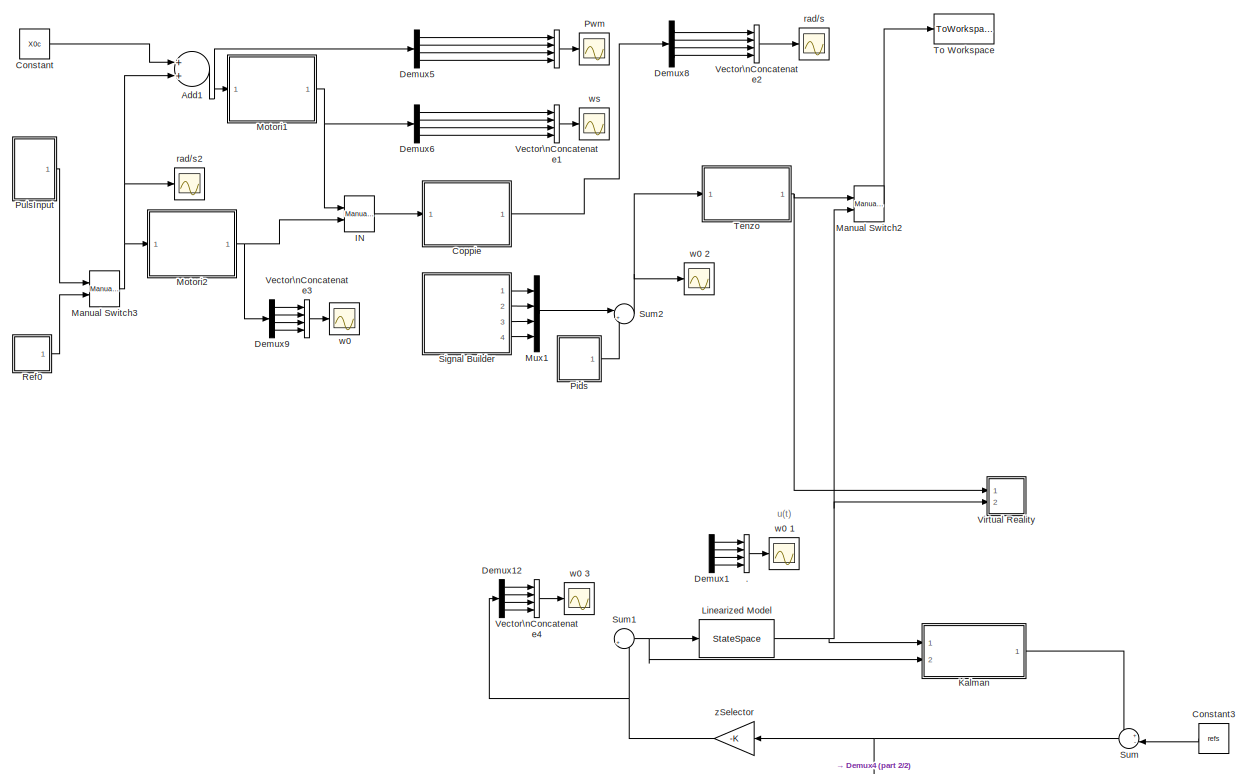
[diagram: root canvas - part 1/2, full width, middle band]
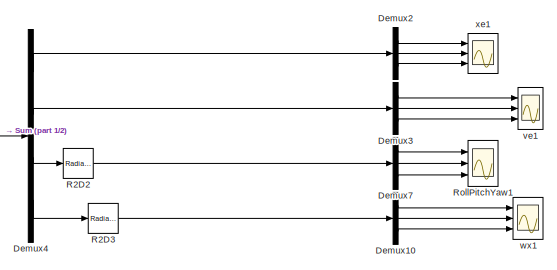
[diagram: root canvas - part 2/2, bottom right region]
MODEL tenzo
KIND model
BLOCK [Concatenate]  
  NumInputs = 4
  Ports = [4, 1]
  SID = 152
BLOCK [Concatenate] .
  NumInputs = 4
  Ports = [4, 1]
  SID = 371
BLOCK [Sum] Add1
  InputSameDT = off
  OutDataTypeStr = Inherit: Inherit via internal rule
  Ports = [2, 1]
  SID = 94
  SaturateOnIntegerOverflow = off
BLOCK [Constant] Constant
  SID = 95
  Value = X0c
BLOCK [Constant] Constant3
  SID = 375
  Value = refs
BLOCK [SubSystem] Coppie
  FunctionWithSeparateData = off
  MaskHideContents = off
  MinAlgLoopOccurrences = off
  Opaque = off
  Ports = [1, 1]
  PropExecContextOutsideSubsystem = off
  RTWSystemCode = Auto
  RequestExecContextInheritance = off
  SID = 65
BLOCK [Sum] Coppie/Add
  InputSameDT = off
  Inputs = ++++
  OutDataTypeStr = Inherit: Inherit via internal rule
  Ports = [4, 1]
  SID = 57
  SaturateOnIntegerOverflow = off
BLOCK [Sum] Coppie/Add1
  InputSameDT = off
  Inputs = +-
  OutDataTypeStr = Inherit: Inherit via internal rule
  Ports = [2, 1]
  SID = 60
  SaturateOnIntegerOverflow = off
BLOCK [Sum] Coppie/Add2
  InputSameDT = off
  Inputs = +-
  OutDataTypeStr = Inherit: Inherit via internal rule
  Ports = [2, 1]
  SID = 61
  SaturateOnIntegerOverflow = off
BLOCK [Sum] Coppie/Add3
  InputSameDT = off
  Inputs = +-+-
  OutDataTypeStr = Inherit: Inherit via internal rule
  Ports = [4, 1]
  SID = 63
  SaturateOnIntegerOverflow = off
BLOCK [Demux] Coppie/Demux
  DisplayOption = bar
  Ports = [1, 4]
  SID = 71
BLOCK [Scope] Coppie/F
  DataFormat = StructureWithTime
  Floating = off
  NumInputPorts = 1
  Ports = [1]
  SID = 232
  SampleTime = 0
  SaveName = ScopeData17
  ShowLegends = off
  ZoomMode = yonly
BLOCK [Scope] Coppie/F1
  DataFormat = StructureWithTime
  Floating = off
  NumInputPorts = 2
  Ports = [2]
  SID = 233
  SampleTime = 0
  SaveName = ScopeData19
  ShowLegends = off
  YMax = 5~5
  YMin = -5~-5
  ZoomMode = yonly
BLOCK [Gain] Coppie/Gain
  Gain = lx
  OutDataTypeStr = Inherit: Inherit via internal rule
  ParamDataTypeStr = Inherit: Inherit via internal rule
  SID = 44
  SaturateOnIntegerOverflow = off
BLOCK [Gain] Coppie/Gain1
  Gain = Kt
  OutDataTypeStr = Inherit: Inherit via internal rule
  ParamDataTypeStr = Inherit: Inherit via internal rule
  SID = 53
  SaturateOnIntegerOverflow = off
BLOCK [Gain] Coppie/Gain2
  Gain = Kt
  OutDataTypeStr = Inherit: Inherit via internal rule
  ParamDataTypeStr = Inherit: Inherit via internal rule
  SID = 54
  SaturateOnIntegerOverflow = off
BLOCK [Gain] Coppie/Gain3
  Gain = Kt
  OutDataTypeStr = Inherit: Inherit via internal rule
  ParamDataTypeStr = Inherit: Inherit via internal rule
  SID = 55
  SaturateOnIntegerOverflow = off
BLOCK [Gain] Coppie/Gain4
  Gain = Kt
  OutDataTypeStr = Inherit: Inherit via internal rule
  ParamDataTypeStr = Inherit: Inherit via internal rule
  SID = 56
  SaturateOnIntegerOverflow = off
BLOCK [Gain] Coppie/Gain5
  Gain = ly
  OutDataTypeStr = Inherit: Inherit via internal rule
  ParamDataTypeStr = Inherit: Inherit via internal rule
  SID = 62
  SaturateOnIntegerOverflow = off
BLOCK [Gain] Coppie/Gain6
  Gain = Ktm
  OutDataTypeStr = Inherit: Inherit via internal rule
  ParamDataTypeStr = Inherit: Inherit via internal rule
  SID = 64
  SaturateOnIntegerOverflow = off
BLOCK [Math] Coppie/Math\nFunction1
  Operator = magnitude^2
  Ports = [1, 1]
  SID = 49
BLOCK [Math] Coppie/Math\nFunction2
  Operator = magnitude^2
  Ports = [1, 1]
  SID = 50
BLOCK [Math] Coppie/Math\nFunction3
  Operator = magnitude^2
  Ports = [1, 1]
  SID = 51
BLOCK [Math] Coppie/Math\nFunction4
  Operator = magnitude^2
  Ports = [1, 1]
  SID = 52
BLOCK [Scope] Coppie/Mpsi
  DataFormat = StructureWithTime
  Floating = off
  NumInputPorts = 1
  Ports = [1]
  SID = 173
  SampleTime = 0
  SaveName = ScopeData14
  ShowLegends = off
  ZoomMode = yonly
BLOCK [Scope] Coppie/Mtau
  DataFormat = StructureWithTime
  Floating = off
  NumInputPorts = 1
  Ports = [1]
  SID = 170
  SampleTime = 0
  SaveName = ScopeData11
  ShowLegends = off
  ZoomMode = yonly
BLOCK [Scope] Coppie/Mthe
  DataFormat = StructureWithTime
  Floating = off
  NumInputPorts = 1
  Ports = [1]
  SID = 171
  SampleTime = 0
  SaveName = ScopeData13
  ShowLegends = off
BLOCK [Mux] Coppie/Mux
  DisplayOption = bar
  Ports = [4, 1]
  SID = 58
BLOCK [Outport] Coppie/U(t)
  IconDisplay = Port number
  SID = 68
BLOCK [Inport] Coppie/w(t)
  IconDisplay = Port number
  SID = 72
BLOCK [Demux] Demux1
  DisplayOption = bar
  Ports = [1, 4]
  SID = 370
BLOCK [Demux] Demux10
  DisplayOption = bar
  Outputs = 3
  Ports = [1, 3]
  SID = 398
BLOCK [Demux] Demux12
  DisplayOption = bar
  Ports = [1, 4]
  SID = 615
BLOCK [Demux] Demux2
  DisplayOption = bar
  Outputs = 3
  Ports = [1, 3]
  SID = 399
BLOCK [Demux] Demux3
  DisplayOption = bar
  Outputs = 3
  Ports = [1, 3]
  SID = 400
BLOCK [Demux] Demux4
  DisplayOption = bar
  Ports = [1, 4]
  SID = 401
BLOCK [Demux] Demux5
  DisplayOption = bar
  Ports = [1, 4]
  SID = 154
BLOCK [Demux] Demux6
  DisplayOption = bar
  Ports = [1, 4]
  SID = 164
BLOCK [Demux] Demux7
  DisplayOption = bar
  Outputs = 3
  Ports = [1, 3]
  SID = 402
BLOCK [Demux] Demux8
  DisplayOption = bar
  Ports = [1, 4]
  SID = 180
BLOCK [Demux] Demux9
  DisplayOption = bar
  Ports = [1, 4]
  SID = 211
BLOCK [Reference] IN  REF=simulink/Signal\nRouting/Manual Switch
  Ports = [2, 1]
  SID = 168
  SourceBlock = simulink/Signal\nRouting/Manual Switch
  SourceType = Manual Switch
  action = 0
  sw = 0
  varsize = off
BLOCK [SubSystem] Kalman
  FunctionWithSeparateData = off
  MaskHideContents = off
  MinAlgLoopOccurrences = off
  Opaque = off
  Ports = [2, 1]
  PropExecContextOutsideSubsystem = off
  RTWSystemCode = Auto
  RequestExecContextInheritance = off
  SID = 413
BLOCK [Demux] Kalman/Demux
  DisplayOption = bar
  Outputs = 3
  Ports = [1, 3]
  SID = 416
BLOCK [Demux] Kalman/Demux1
  DisplayOption = bar
  Outputs = 3
  Ports = [1, 3]
  SID = 417
BLOCK [Demux] Kalman/Demux2
  DisplayOption = bar
  Ports = [1, 4]
  SID = 418
BLOCK [Demux] Kalman/Demux3
  DisplayOption = bar
  Outputs = 3
  Ports = [1, 3]
  SID = 419
BLOCK [Demux] Kalman/Demux4
  DisplayOption = bar
  Outputs = 3
  Ports = [1, 3]
  SID = 420
BLOCK [SubSystem] Kalman/Kalman
  FunctionWithSeparateData = off
  MaskHideContents = off
  MinAlgLoopOccurrences = off
  Opaque = off
  Ports = [2, 1]
  PropExecContextOutsideSubsystem = off
  RTWSystemCode = Auto
  RequestExecContextInheritance = off
  SID = 421
BLOCK [Mux] Kalman/Kalman/Mux
  DisplayOption = bar
  Inputs = [4 12]
  Ports = [2, 1]
  SID = 424
BLOCK [StateSpace] Kalman/Kalman/filtro di kalman
  A = Aoss
  B = Boss
  C = Coss
  D = Doss
  SID = 425
  X0 = [0 0 0 0 0 0 0 0 0 0 0 0]
BLOCK [Inport] Kalman/Kalman/u
  IconDisplay = Port number
  SID = 422
BLOCK [Outport] Kalman/Kalman/xi0
  IconDisplay = Port number
  SID = 426
BLOCK [Inport] Kalman/Kalman/y
  IconDisplay = Port number
  Port = 2
  SID = 423
BLOCK [Reference] Kalman/R2D  REF=simulink_extras/Transformations/Radians\nto Degrees
  Ports = [1, 1]
  SID = 427
  SourceBlock = simulink_extras/Transformations/Radians\nto Degrees
  SourceType = RadiansToDegrees
BLOCK [Reference] Kalman/R2D1  REF=simulink_extras/Transformations/Radians\nto Degrees
  Ports = [1, 1]
  SID = 428
  SourceBlock = simulink_extras/Transformations/Radians\nto Degrees
  SourceType = RadiansToDegrees
BLOCK [Scope] Kalman/RollPitchYaw
  DataFormat = StructureWithTime
  Floating = off
  NumInputPorts = 3
  Ports = [3]
  SID = 429
  SampleTime = 0
  SaveName = ScopeData20
  ShowLegends = off
  YMax = 5~5~5
  YMin = -5~-5~-5
BLOCK [Sum] Kalman/Sum
  IconShape = round
  InputSameDT = off
  Inputs = +-
  OutDataTypeStr = Inherit: Inherit via internal rule
  Ports = [2, 1]
  SID = 430
  SaturateOnIntegerOverflow = off
BLOCK [Outport] Kalman/Xest
  IconDisplay = Port number
  SID = 434
BLOCK [Inport] Kalman/u
  IconDisplay = Port number
  Port = 2
  SID = 415
BLOCK [Scope] Kalman/ve
  DataFormat = StructureWithTime
  Floating = off
  NumInputPorts = 3
  Ports = [3]
  SID = 431
  SampleTime = 0
  SaveName = ScopeData21
  ShowLegends = off
  YMax = 5~5~5
  YMin = -5~-5~-5
BLOCK [Scope] Kalman/wx
  DataFormat = StructureWithTime
  Floating = off
  NumInputPorts = 3
  Ports = [3]
  SID = 432
  SampleTime = 0
  SaveName = ScopeData22
  ShowLegends = off
  TimeRange = 15
  YMax = 5~5~5
  YMin = -5~-5~-5
BLOCK [Scope] Kalman/xe
  DataFormat = StructureWithTime
  Floating = off
  LimitDataPoints = off
  NumInputPorts = 3
  Ports = [3]
  SID = 433
  SampleTime = 0
  SaveName = ScopeData24
  ShowLegends = off
  TimeRange = 15
  YMax = 1.25e-14~1.5e-14~8e-19
  YMin = -1e-14~-1.25e-14~-1e-18
BLOCK [Inport] Kalman/y
  IconDisplay = Port number
  SID = 414
BLOCK [StateSpace] Linearized Model
  A = A
  B = B
  C = C
  D = D
  SID = 269
  X0 = [0 0 -30 0 0 0 0 0 1 0 0 0]
BLOCK [Reference] Manual Switch2  REF=simulink/Signal\nRouting/Manual Switch
  Ports = [2, 1]
  SID = 270
  SourceBlock = simulink/Signal\nRouting/Manual Switch
  SourceType = Manual Switch
  action = 0
  sw = 1
  varsize = off
BLOCK [Reference] Manual Switch3  REF=simulink/Signal\nRouting/Manual Switch
  Ports = [2, 1]
  SID = 308
  SourceBlock = simulink/Signal\nRouting/Manual Switch
  SourceType = Manual Switch
  action = 0
  sw = 1
  varsize = off
BLOCK [SubSystem] Motori1
  FunctionWithSeparateData = off
  MaskHideContents = off
  MinAlgLoopOccurrences = off
  Opaque = off
  Ports = [1, 1]
  PropExecContextOutsideSubsystem = off
  RTWSystemCode = Auto
  RequestExecContextInheritance = off
  SID = 111
BLOCK [DeadZone] Motori1/DeadZone
  LowerValue = 0
  SID = 100
  UpperValue = dz1
BLOCK [DeadZone] Motori1/DeadZone1
  LowerValue = 0
  SID = 102
  UpperValue = dz3
BLOCK [DeadZone] Motori1/DeadZone2
  LowerValue = 0
  SID = 105
  UpperValue = dz4
BLOCK [DeadZone] Motori1/DeadZone3
  LowerValue = 0
  SID = 108
  UpperValue = dz2
BLOCK [Demux] Motori1/Demux5
  DisplayOption = bar
  Ports = [1, 4]
  SID = 96
BLOCK [TransferFcn] Motori1/Motore 1
  Denominator = [tc 1]
  Numerator = [k1]
  SID = 101
BLOCK [TransferFcn] Motori1/Motore 2
  Denominator = [tc 1]
  Numerator = [k3]
  SID = 103
BLOCK [TransferFcn] Motori1/Motore 3
  Denominator = [tc 1]
  Numerator = [k4]
  SID = 106
BLOCK [TransferFcn] Motori1/Motore 4
  Denominator = [tc 1]
  Numerator = [k2]
  SID = 109
BLOCK [Mux] Motori1/Mux
  DisplayOption = bar
  Ports = [4, 1]
  SID = 98
BLOCK [Inport] Motori1/Pwm
  IconDisplay = Port number
  SID = 112
BLOCK [Saturate] Motori1/Sat
  InputPortMap = u0
  LowerLimit = 0
  Ports = [1, 1]
  SID = 99
  UpperLimit = PWM_max
BLOCK [Saturate] Motori1/Sat1
  InputPortMap = u0
  LowerLimit = 0
  Ports = [1, 1]
  SID = 104
  UpperLimit = PWM_max
BLOCK [Saturate] Motori1/Sat2
  InputPortMap = u0
  LowerLimit = 0
  Ports = [1, 1]
  SID = 107
  UpperLimit = PWM_max
BLOCK [Saturate] Motori1/Sat3
  InputPortMap = u0
  LowerLimit = 0
  Ports = [1, 1]
  SID = 110
  UpperLimit = PWM_max
BLOCK [Outport] Motori1/w
  IconDisplay = Port number
  SID = 113
BLOCK [Scope] Motori1/ws
  DataFormat = StructureWithTime
  Floating = off
  NumInputPorts = 1
  Ports = [1]
  SID = 183
  SampleTime = 0
  SaveName = ScopeData15
  ShowLegends = off
  YMax = 952.1
  YMin = 952.1
BLOCK [SubSystem] Motori2
  FunctionWithSeparateData = off
  MaskHideContents = off
  MinAlgLoopOccurrences = off
  Opaque = off
  Ports = [1, 1]
  PropExecContextOutsideSubsystem = off
  RTWSystemCode = Auto
  RequestExecContextInheritance = off
  SID = 184
BLOCK [DeadZone] Motori2/DeadZone
  LowerValue = 0
  SID = 186
  UpperValue = 300
BLOCK [DeadZone] Motori2/DeadZone1
  LowerValue = 0
  SID = 187
  UpperValue = 300
BLOCK [DeadZone] Motori2/DeadZone2
  LowerValue = 0
  SID = 188
  UpperValue = 300
BLOCK [DeadZone] Motori2/DeadZone3
  LowerValue = 0
  SID = 189
  UpperValue = 300
BLOCK [Demux] Motori2/Demux5
  DisplayOption = bar
  Ports = [1, 4]
  SID = 190
BLOCK [TransferFcn] Motori2/Motore 1
  Denominator = [tc 1]
  SID = 191
BLOCK [TransferFcn] Motori2/Motore 2
  Denominator = [tc 1]
  SID = 192
BLOCK [TransferFcn] Motori2/Motore 3
  Denominator = [tc 1]
  SID = 193
BLOCK [TransferFcn] Motori2/Motore 4
  Denominator = [tc 1]
  SID = 194
BLOCK [Mux] Motori2/Mux
  DisplayOption = bar
  Ports = [4, 1]
  SID = 195
BLOCK [Saturate] Motori2/Sat
  InputPortMap = u0
  LowerLimit = 0
  Ports = [1, 1]
  SID = 196
  UpperLimit = 10000
BLOCK [Saturate] Motori2/Sat1
  InputPortMap = u0
  LowerLimit = 0
  Ports = [1, 1]
  SID = 197
  UpperLimit = 10000
BLOCK [Saturate] Motori2/Sat2
  InputPortMap = u0
  LowerLimit = 0
  Ports = [1, 1]
  SID = 198
  UpperLimit = 10000
BLOCK [Saturate] Motori2/Sat3
  InputPortMap = u0
  LowerLimit = 0
  Ports = [1, 1]
  SID = 199
  UpperLimit = 10000
BLOCK [Outport] Motori2/w
  IconDisplay = Port number
  SID = 201
BLOCK [Inport] Motori2/wRif
  IconDisplay = Port number
  SID = 185
BLOCK [Scope] Motori2/ws
  DataFormat = StructureWithTime
  Floating = off
  NumInputPorts = 1
  Ports = [1]
  SID = 200
  SampleTime = 0
  SaveName = ScopeData15
  ShowLegends = off
  YMax = 999.705
  YMin = 904.495
BLOCK [Mux] Mux1
  DisplayOption = bar
  Ports = [4, 1]
  SID = 530
BLOCK [SubSystem] Pids
  FunctionWithSeparateData = off
  MaskHideContents = off
  MinAlgLoopOccurrences = off
  Opaque = off
  Ports = [0, 1]
  PropExecContextOutsideSubsystem = off
  RTWSystemCode = Auto
  RequestExecContextInheritance = off
  SID = 484
BLOCK [Constant] Pids/Constant1
  SID = 491
  Value = refs(7)
BLOCK [Constant] Pids/Constant2
  SID = 483
  Value = refs(3)
BLOCK [Constant] Pids/Constant3
  SID = 492
  Value = refs(8)
BLOCK [Constant] Pids/Constant4
  SID = 493
  Value = refs(9)
BLOCK [From] Pids/From1
  GotoTag = ze
  SID = 506
  TagVisibility = global
BLOCK [From] Pids/From2
  GotoTag = phi
  SID = 507
  TagVisibility = global
BLOCK [From] Pids/From3
  GotoTag = theta
  SID = 508
  TagVisibility = global
BLOCK [From] Pids/From4
  GotoTag = psi
  SID = 509
  TagVisibility = global
BLOCK [Mux] Pids/Mux1
  DisplayOption = bar
  Ports = [4, 1]
  SID = 481
BLOCK [Reference] Pids/PID Controller  REF=simulink/Continuous/PID Controller
  AntiWindupMode = none
  Controller = PID
  D = -3.74671724354833
  DOutDataTypeStr = Inherit: Inherit via internal rule
  DOutMax = []
  DOutMin = []
  DParamDataTypeStr = Inherit: Inherit via internal rule
  DParamMax = []
  DParamMin = []
  ExternalReset = none
  FilterContinuousStateAttributes = ''
  FilterMethod = Forward Euler
  FilterOutDataTypeStr = Inherit: Inherit via internal rule
  FilterOutMax = []
  FilterOutMin = []
  FilterRTWStateStorageClass = Auto
  FilterStateMustResolveToSignalObject = off
  Form = Parallel
  I = -0.10856097435728
  IOutDataTypeStr = Inherit: Inherit via internal rule
  IOutMax = []
  IOutMin = []
  IParamDataTypeStr = Inherit: Inherit via internal rule
  IParamMax = []
  IParamMin = []
  IgnoreLimit = off
  InitialConditionForFilter = 0
  InitialConditionForIntegrator = 0
  InitialConditionSource = internal
  IntegratorContinuousStateAttributes = ''
  IntegratorMethod = Forward Euler
  IntegratorOutDataTypeStr = Inherit: Inherit via internal rule
  IntegratorOutMax = []
  IntegratorOutMin = []
  IntegratorRTWStateStorageClass = Auto
  IntegratorStateMustResolveToSignalObject = off
  Kb = 1
  KbOutDataTypeStr = Inherit: Inherit via internal rule
  KbOutMax = []
  KbOutMin = []
  KbParamDataTypeStr = Inherit: Inherit via internal rule
  KbParamMax = []
  KbParamMin = []
  Kt = 1
  KtOutDataTypeStr = Inherit: Inherit via internal rule
  KtOutMax = []
  KtOutMin = []
  KtParamDataTypeStr = Inherit: Inherit via internal rule
  KtParamMax = []
  KtParamMin = []
  LimitOutput = off
  LinearizeAsGain = off
  LockScale = off
  LowerSaturationLimit = -inf
  N = 25.4035614147579
  NOutDataTypeStr = Inherit: Inherit via internal rule
  NOutMax = []
  NOutMin = []
  NParamDataTypeStr = Inherit: Inherit via internal rule
  NParamMax = []
  NParamMin = []
  P = -2.81657290050028
  POutDataTypeStr = Inherit: Inherit via internal rule
  POutMax = []
  POutMin = []
  PParamDataTypeStr = Inherit: Inherit via internal rule
  PParamMax = []
  PParamMin = []
  Ports = [1, 1]
  RndMeth = Floor
  SID = 474
  SampleTime = 1
  SaturateOnIntegerOverflow = off
  SaturationOutDataTypeStr = Inherit: Same as input
  SaturationOutMax = []
  SaturationOutMin = []
  SourceBlock = simulink/Continuous/PID Controller
  SourceType = PID 1dof
  SumAccumDataTypeStr = Inherit: Inherit via internal rule
  SumDAccumDataTypeStr = Inherit: Inherit via internal rule
  SumDOutDataTypeStr = Inherit: Inherit via internal rule
  SumDOutMax = []
  SumDOutMin = []
  SumI1AccumDataTypeStr = Inherit: Inherit via internal rule
  SumI1OutDataTypeStr = Inherit: Inherit via internal rule
  SumI1OutMax = []
  SumI1OutMin = []
  SumI2AccumDataTypeStr = Inherit: Inherit via internal rule
  SumI2OutDataTypeStr = Inherit: Inherit via internal rule
  SumI2OutMax = []
  SumI2OutMin = []
  SumI3AccumDataTypeStr = Inherit: Inherit via internal rule
  SumI3OutDataTypeStr = Inherit: Inherit via internal rule
  SumI3OutMax = []
  SumI3OutMin = []
  SumOutDataTypeStr = Inherit: Inherit via internal rule
  SumOutMax = []
  SumOutMin = []
  TimeDomain = Continuous-time
  TrackingMode = off
  UpperSaturationLimit = inf
  ZeroCross = on
BLOCK [Reference] Pids/PID Controller1  REF=simulink/Continuous/PID Controller
  AntiWindupMode = none
  Controller = PID
  D = 0.00233719169675889
  DOutDataTypeStr = Inherit: Inherit via internal rule
  DOutMax = []
  DOutMin = []
  DParamDataTypeStr = Inherit: Inherit via internal rule
  DParamMax = []
  DParamMin = []
  ExternalReset = none
  FilterContinuousStateAttributes = ''
  FilterMethod = Forward Euler
  FilterOutDataTypeStr = Inherit: Inherit via internal rule
  FilterOutMax = []
  FilterOutMin = []
  FilterRTWStateStorageClass = Auto
  FilterStateMustResolveToSignalObject = off
  Form = Parallel
  I = 0.000205170764798032
  IOutDataTypeStr = Inherit: Inherit via internal rule
  IOutMax = []
  IOutMin = []
  IParamDataTypeStr = Inherit: Inherit via internal rule
  IParamMax = []
  IParamMin = []
  IgnoreLimit = off
  InitialConditionForFilter = 0
  InitialConditionForIntegrator = 0
  InitialConditionSource = internal
  IntegratorContinuousStateAttributes = ''
  IntegratorMethod = Forward Euler
  IntegratorOutDataTypeStr = Inherit: Inherit via internal rule
  IntegratorOutMax = []
  IntegratorOutMin = []
  IntegratorRTWStateStorageClass = Auto
  IntegratorStateMustResolveToSignalObject = off
  Kb = 1
  KbOutDataTypeStr = Inherit: Inherit via internal rule
  KbOutMax = []
  KbOutMin = []
  KbParamDataTypeStr = Inherit: Inherit via internal rule
  KbParamMax = []
  KbParamMin = []
  Kt = 1
  KtOutDataTypeStr = Inherit: Inherit via internal rule
  KtOutMax = []
  KtOutMin = []
  KtParamDataTypeStr = Inherit: Inherit via internal rule
  KtParamMax = []
  KtParamMin = []
  LimitOutput = off
  LinearizeAsGain = off
  LockScale = off
  LowerSaturationLimit = -inf
  N = 31.074421221511
  NOutDataTypeStr = Inherit: Inherit via internal rule
  NOutMax = []
  NOutMin = []
  NParamDataTypeStr = Inherit: Inherit via internal rule
  NParamMax = []
  NParamMin = []
  P = 0.00227776084894012
  POutDataTypeStr = Inherit: Inherit via internal rule
  POutMax = []
  POutMin = []
  PParamDataTypeStr = Inherit: Inherit via internal rule
  PParamMax = []
  PParamMin = []
  Ports = [1, 1]
  RndMeth = Floor
  SID = 477
  SampleTime = 1
  SaturateOnIntegerOverflow = off
  SaturationOutDataTypeStr = Inherit: Same as input
  SaturationOutMax = []
  SaturationOutMin = []
  SourceBlock = simulink/Continuous/PID Controller
  SourceType = PID 1dof
  SumAccumDataTypeStr = Inherit: Inherit via internal rule
  SumDAccumDataTypeStr = Inherit: Inherit via internal rule
  SumDOutDataTypeStr = Inherit: Inherit via internal rule
  SumDOutMax = []
  SumDOutMin = []
  SumI1AccumDataTypeStr = Inherit: Inherit via internal rule
  SumI1OutDataTypeStr = Inherit: Inherit via internal rule
  SumI1OutMax = []
  SumI1OutMin = []
  SumI2AccumDataTypeStr = Inherit: Inherit via internal rule
  SumI2OutDataTypeStr = Inherit: Inherit via internal rule
  SumI2OutMax = []
  SumI2OutMin = []
  SumI3AccumDataTypeStr = Inherit: Inherit via internal rule
  SumI3OutDataTypeStr = Inherit: Inherit via internal rule
  SumI3OutMax = []
  SumI3OutMin = []
  SumOutDataTypeStr = Inherit: Inherit via internal rule
  SumOutMax = []
  SumOutMin = []
  TimeDomain = Continuous-time
  TrackingMode = off
  UpperSaturationLimit = inf
  ZeroCross = on
BLOCK [Reference] Pids/PID Controller2  REF=simulink/Continuous/PID Controller
  AntiWindupMode = none
  Controller = PID
  D = 0.00199688923629926
  DOutDataTypeStr = Inherit: Inherit via internal rule
  DOutMax = []
  DOutMin = []
  DParamDataTypeStr = Inherit: Inherit via internal rule
  DParamMax = []
  DParamMin = []
  ExternalReset = none
  FilterContinuousStateAttributes = ''
  FilterMethod = Forward Euler
  FilterOutDataTypeStr = Inherit: Inherit via internal rule
  FilterOutMax = []
  FilterOutMin = []
  FilterRTWStateStorageClass = Auto
  FilterStateMustResolveToSignalObject = off
  Form = Parallel
  I = 3.39916753327837e-05
  IOutDataTypeStr = Inherit: Inherit via internal rule
  IOutMax = []
  IOutMin = []
  IParamDataTypeStr = Inherit: Inherit via internal rule
  IParamMax = []
  IParamMin = []
  IgnoreLimit = off
  InitialConditionForFilter = 0
  InitialConditionForIntegrator = 0
  InitialConditionSource = internal
  IntegratorContinuousStateAttributes = ''
  IntegratorMethod = Forward Euler
  IntegratorOutDataTypeStr = Inherit: Inherit via internal rule
  IntegratorOutMax = []
  IntegratorOutMin = []
  IntegratorRTWStateStorageClass = Auto
  IntegratorStateMustResolveToSignalObject = off
  Kb = 1
  KbOutDataTypeStr = Inherit: Inherit via internal rule
  KbOutMax = []
  KbOutMin = []
  KbParamDataTypeStr = Inherit: Inherit via internal rule
  KbParamMax = []
  KbParamMin = []
  Kt = 1
  KtOutDataTypeStr = Inherit: Inherit via internal rule
  KtOutMax = []
  KtOutMin = []
  KtParamDataTypeStr = Inherit: Inherit via internal rule
  KtParamMax = []
  KtParamMin = []
  LimitOutput = off
  LinearizeAsGain = off
  LockScale = off
  LowerSaturationLimit = -inf
  N = 54.5397025421619
  NOutDataTypeStr = Inherit: Inherit via internal rule
  NOutMax = []
  NOutMin = []
  NParamDataTypeStr = Inherit: Inherit via internal rule
  NParamMax = []
  NParamMin = []
  P = 0.000563479429623525
  POutDataTypeStr = Inherit: Inherit via internal rule
  POutMax = []
  POutMin = []
  PParamDataTypeStr = Inherit: Inherit via internal rule
  PParamMax = []
  PParamMin = []
  Ports = [1, 1]
  RndMeth = Floor
  SID = 478
  SampleTime = 1
  SaturateOnIntegerOverflow = off
  SaturationOutDataTypeStr = Inherit: Same as input
  SaturationOutMax = []
  SaturationOutMin = []
  SourceBlock = simulink/Continuous/PID Controller
  SourceType = PID 1dof
  SumAccumDataTypeStr = Inherit: Inherit via internal rule
  SumDAccumDataTypeStr = Inherit: Inherit via internal rule
  SumDOutDataTypeStr = Inherit: Inherit via internal rule
  SumDOutMax = []
  SumDOutMin = []
  SumI1AccumDataTypeStr = Inherit: Inherit via internal rule
  SumI1OutDataTypeStr = Inherit: Inherit via internal rule
  SumI1OutMax = []
  SumI1OutMin = []
  SumI2AccumDataTypeStr = Inherit: Inherit via internal rule
  SumI2OutDataTypeStr = Inherit: Inherit via internal rule
  SumI2OutMax = []
  SumI2OutMin = []
  SumI3AccumDataTypeStr = Inherit: Inherit via internal rule
  SumI3OutDataTypeStr = Inherit: Inherit via internal rule
  SumI3OutMax = []
  SumI3OutMin = []
  SumOutDataTypeStr = Inherit: Inherit via internal rule
  SumOutMax = []
  SumOutMin = []
  TimeDomain = Continuous-time
  TrackingMode = off
  UpperSaturationLimit = inf
  ZeroCross = on
BLOCK [Reference] Pids/PID Controller3  REF=simulink/Continuous/PID Controller
  AntiWindupMode = none
  Controller = PID
  D = 0.000795936244237723
  DOutDataTypeStr = Inherit: Inherit via internal rule
  DOutMax = []
  DOutMin = []
  DParamDataTypeStr = Inherit: Inherit via internal rule
  DParamMax = []
  DParamMin = []
  ExternalReset = none
  FilterContinuousStateAttributes = ''
  FilterMethod = Forward Euler
  FilterOutDataTypeStr = Inherit: Inherit via internal rule
  FilterOutMax = []
  FilterOutMin = []
  FilterRTWStateStorageClass = Auto
  FilterStateMustResolveToSignalObject = off
  Form = Parallel
  I = 1.96774564028284e-06
  IOutDataTypeStr = Inherit: Inherit via internal rule
  IOutMax = []
  IOutMin = []
  IParamDataTypeStr = Inherit: Inherit via internal rule
  IParamMax = []
  IParamMin = []
  IgnoreLimit = off
  InitialConditionForFilter = 0
  InitialConditionForIntegrator = 0
  InitialConditionSource = internal
  IntegratorContinuousStateAttributes = ''
  IntegratorMethod = Forward Euler
  IntegratorOutDataTypeStr = Inherit: Inherit via internal rule
  IntegratorOutMax = []
  IntegratorOutMin = []
  IntegratorRTWStateStorageClass = Auto
  IntegratorStateMustResolveToSignalObject = off
  Kb = 1
  KbOutDataTypeStr = Inherit: Inherit via internal rule
  KbOutMax = []
  KbOutMin = []
  KbParamDataTypeStr = Inherit: Inherit via internal rule
  KbParamMax = []
  KbParamMin = []
  Kt = 1
  KtOutDataTypeStr = Inherit: Inherit via internal rule
  KtOutMax = []
  KtOutMin = []
  KtParamDataTypeStr = Inherit: Inherit via internal rule
  KtParamMax = []
  KtParamMin = []
  LimitOutput = off
  LinearizeAsGain = off
  LockScale = off
  LowerSaturationLimit = -inf
  N = 4.0451280111618
  NOutDataTypeStr = Inherit: Inherit via internal rule
  NOutMax = []
  NOutMin = []
  NParamDataTypeStr = Inherit: Inherit via internal rule
  NParamMax = []
  NParamMin = []
  P = 0.000131344162662358
  POutDataTypeStr = Inherit: Inherit via internal rule
  POutMax = []
  POutMin = []
  PParamDataTypeStr = Inherit: Inherit via internal rule
  PParamMax = []
  PParamMin = []
  Ports = [1, 1]
  RndMeth = Floor
  SID = 479
  SampleTime = 1
  SaturateOnIntegerOverflow = off
  SaturationOutDataTypeStr = Inherit: Same as input
  SaturationOutMax = []
  SaturationOutMin = []
  SourceBlock = simulink/Continuous/PID Controller
  SourceType = PID 1dof
  SumAccumDataTypeStr = Inherit: Inherit via internal rule
  SumDAccumDataTypeStr = Inherit: Inherit via internal rule
  SumDOutDataTypeStr = Inherit: Inherit via internal rule
  SumDOutMax = []
  SumDOutMin = []
  SumI1AccumDataTypeStr = Inherit: Inherit via internal rule
  SumI1OutDataTypeStr = Inherit: Inherit via internal rule
  SumI1OutMax = []
  SumI1OutMin = []
  SumI2AccumDataTypeStr = Inherit: Inherit via internal rule
  SumI2OutDataTypeStr = Inherit: Inherit via internal rule
  SumI2OutMax = []
  SumI2OutMin = []
  SumI3AccumDataTypeStr = Inherit: Inherit via internal rule
  SumI3OutDataTypeStr = Inherit: Inherit via internal rule
  SumI3OutMax = []
  SumI3OutMin = []
  SumOutDataTypeStr = Inherit: Inherit via internal rule
  SumOutMax = []
  SumOutMin = []
  TimeDomain = Continuous-time
  TrackingMode = off
  UpperSaturationLimit = inf
  ZeroCross = on
BLOCK [Sum] Pids/Sum
  IconShape = round
  InputSameDT = off
  Inputs = +-|
  OutDataTypeStr = Inherit: Inherit via internal rule
  Ports = [2, 1]
  SID = 502
  SaturateOnIntegerOverflow = off
BLOCK [Sum] Pids/Sum1
  IconShape = round
  InputSameDT = off
  Inputs = +-|
  OutDataTypeStr = Inherit: Inherit via internal rule
  Ports = [2, 1]
  SID = 510
  SaturateOnIntegerOverflow = off
BLOCK [Sum] Pids/Sum2
  IconShape = round
  InputSameDT = off
  Inputs = +-|
  OutDataTypeStr = Inherit: Inherit via internal rule
  Ports = [2, 1]
  SID = 511
  SaturateOnIntegerOverflow = off
BLOCK [Sum] Pids/Sum3
  IconShape = round
  InputSameDT = off
  Inputs = +-|
  OutDataTypeStr = Inherit: Inherit via internal rule
  Ports = [2, 1]
  SID = 512
  SaturateOnIntegerOverflow = off
BLOCK [Outport] Pids/u*(t)
  IconDisplay = Port number
  SID = 488
BLOCK [Scope] Pids/w0  1
  DataFormat = StructureWithTime
  Floating = off
  LimitDataPoints = off
  NumInputPorts = 1
  Ports = [1]
  SID = 513
  SampleTime = 0
  SaveName = ScopeData28
  ShowLegends = off
  YMax = -0.7
  YMin = -2.5
BLOCK [Scope] Pids/w0  2
  DataFormat = StructureWithTime
  Floating = off
  LimitDataPoints = off
  NumInputPorts = 1
  Ports = [1]
  SID = 515
  SampleTime = 0
  SaveName = ScopeData32
  ShowLegends = off
  YMax = 4700
  YMin = 2700
BLOCK [Scope] Pids/w0  3
  DataFormat = StructureWithTime
  Floating = off
  LimitDataPoints = off
  NumInputPorts = 1
  Ports = [1]
  SID = 517
  SampleTime = 0
  SaveName = ScopeData33
  ShowLegends = off
  YMax = 4700
  YMin = 2700
BLOCK [Scope] Pids/w0  4
  DataFormat = StructureWithTime
  Floating = off
  LimitDataPoints = off
  NumInputPorts = 1
  Ports = [1]
  SID = 519
  SampleTime = 0
  SaveName = ScopeData34
  ShowLegends = off
  YMax = 4700
  YMin = 2700
BLOCK [SubSystem] PulsInput
  FunctionWithSeparateData = off
  MaskHideContents = off
  MinAlgLoopOccurrences = off
  Opaque = off
  Ports = [0, 1]
  PropExecContextOutsideSubsystem = off
  RTWSystemCode = Auto
  RequestExecContextInheritance = off
  SID = 310
BLOCK [Sum] PulsInput/Add2
  InputSameDT = off
  OutDataTypeStr = Inherit: Inherit via internal rule
  Ports = [2, 1]
  SID = 279
  SaturateOnIntegerOverflow = off
BLOCK [Sum] PulsInput/Add3
  InputSameDT = off
  OutDataTypeStr = Inherit: Inherit via internal rule
  Ports = [2, 1]
  SID = 283
  SaturateOnIntegerOverflow = off
BLOCK [Sum] PulsInput/Add4
  InputSameDT = off
  OutDataTypeStr = Inherit: Inherit via internal rule
  Ports = [2, 1]
  SID = 288
  SaturateOnIntegerOverflow = off
BLOCK [Sum] PulsInput/Add5
  InputSameDT = off
  OutDataTypeStr = Inherit: Inherit via internal rule
  Ports = [2, 1]
  SID = 294
  SaturateOnIntegerOverflow = off
BLOCK [Constant] PulsInput/Constant1
  SID = 280
  Value = X0c
BLOCK [Constant] PulsInput/Constant2
  SID = 284
  Value = X0c
BLOCK [Constant] PulsInput/Constant3
  SID = 289
  Value = X0c
BLOCK [Constant] PulsInput/Constant4
  SID = 295
  Value = X0c
BLOCK [Gain] PulsInput/Inflow1
  Gain = PulseOff
  OutDataTypeStr = Inherit: Inherit via internal rule
  ParamDataTypeStr = Inherit: Inherit via internal rule
  SID = 334
  SaturateOnIntegerOverflow = off
BLOCK [Gain] PulsInput/Inflow2
  Gain = PulseOff
  OutDataTypeStr = Inherit: Inherit via internal rule
  ParamDataTypeStr = Inherit: Inherit via internal rule
  SID = 335
  SaturateOnIntegerOverflow = off
BLOCK [Gain] PulsInput/Inflow3
  Gain = PulseOff
  OutDataTypeStr = Inherit: Inherit via internal rule
  ParamDataTypeStr = Inherit: Inherit via internal rule
  SID = 336
  SaturateOnIntegerOverflow = off
BLOCK [Gain] PulsInput/Inflow4
  Gain = PulseOff
  OutDataTypeStr = Inherit: Inherit via internal rule
  ParamDataTypeStr = Inherit: Inherit via internal rule
  SID = 337
  SaturateOnIntegerOverflow = off
BLOCK [DiscretePulseGenerator] PulsInput/Pulse\nGenerator
  Amplitude = pulseAmp
  Period = pulseP
  PhaseDelay = pulsePh
  Ports = [0, 1]
  PulseType = Time based
  PulseWidth = 50
  SID = 277
BLOCK [DiscretePulseGenerator] PulsInput/Pulse\nGenerator1
  Amplitude = pulseAmp
  Period = pulseP
  PhaseDelay = pulsePh
  Ports = [0, 1]
  PulseType = Time based
  PulseWidth = 50
  SID = 285
BLOCK [DiscretePulseGenerator] PulsInput/Pulse\nGenerator2
  Amplitude = pulseAmp
  Period = pulseP
  PhaseDelay = pulsePh
  Ports = [0, 1]
  PulseType = Time based
  PulseWidth = 50
  SID = 290
BLOCK [DiscretePulseGenerator] PulsInput/Pulse\nGenerator3
  Amplitude = pulseAmp
  Period = pulseP4
  PhaseDelay = pulsePh
  Ports = [0, 1]
  PulseType = Time based
  PulseWidth = 50
  SID = 296
BLOCK [Concatenate] PulsInput/Vector\nConcatenate4
  NumInputs = 4
  Ports = [4, 1]
  SID = 298
BLOCK [Outport] PulsInput/W
  IconDisplay = Port number
  SID = 311
BLOCK [Scope] Pwm
  DataFormat = StructureWithTime
  Floating = off
  NumInputPorts = 1
  Ports = [1]
  SID = 143
  SampleTime = 0
  SaveName = ScopeData1
  ShowLegends = off
BLOCK [Reference] R2D2  REF=simulink_extras/Transformations/Radians\nto Degrees
  Ports = [1, 1]
  SID = 403
  SourceBlock = simulink_extras/Transformations/Radians\nto Degrees
  SourceType = RadiansToDegrees
BLOCK [Reference] R2D3  REF=simulink_extras/Transformations/Radians\nto Degrees
  Ports = [1, 1]
  SID = 404
  SourceBlock = simulink_extras/Transformations/Radians\nto Degrees
  SourceType = RadiansToDegrees
BLOCK [SubSystem] Ref0
  FunctionWithSeparateData = off
  MaskHideContents = off
  MinAlgLoopOccurrences = off
  Opaque = off
  Ports = [0, 1]
  PropExecContextOutsideSubsystem = off
  RTWSystemCode = Auto
  RequestExecContextInheritance = off
  SID = 305
BLOCK [Mux] Ref0/Mux
  DisplayOption = bar
  Ports = [4, 1]
  SID = 276
BLOCK [Outport] Ref0/Out1
  IconDisplay = Port number
  SID = 306
BLOCK [SignalGenerator] Ref0/W1
  Amplitude = w1
  Frequency = 0.07
  Ports = [0, 1]
  SID = 272
  WaveForm = square
BLOCK [SignalGenerator] Ref0/W2
  Amplitude = w2
  Frequency = 0.07
  Ports = [0, 1]
  SID = 273
  WaveForm = square
BLOCK [SignalGenerator] Ref0/W3
  Amplitude = w3
  Frequency = 0.07
  Ports = [0, 1]
  SID = 274
  WaveForm = square
BLOCK [SignalGenerator] Ref0/W4
  Amplitude = w4
  Frequency = 0.07
  Ports = [0, 1]
  SID = 275
  WaveForm = square
BLOCK [Scope] RollPitchYaw1
  DataFormat = StructureWithTime
  Floating = off
  NumInputPorts = 3
  Ports = [3]
  SID = 405
  SampleTime = 0
  SaveName = ScopeData21
  ShowLegends = off
  YMax = 5~5~5
  YMin = -5~-5~-5
BLOCK [SubSystem] Signal Builder
  ClipboardFcn = sigbuilder_block('clipboard');
  CloseFcn = sigbuilder_block('close');
  ContinueFcn = sigbuilder_block('continue');
  CopyFcn = sigbuilder_block('copy');
  DeleteFcn = sigbuilder_block('delete');
  FunctionWithSeparateData = off
  LoadFcn = sigbuilder_block('load');
  MaskCapabilities = slmaskedcaps(gcbh)
  MaskDescription = Simulink:masks:SigbuilderBlock_MD
  MaskDisplay = plot(0, 0, 100, 100,[2, 2, 32, 32, 2], [68, 8, 8, 68, 68],[32, 2], [38, 38], [32, 19, 2],[53, 60, 44], [32, 17, 17, 2],[16, 16, 31, 31]);txt = getActiveGroup(gcbh);text(2, 100, txt,'verticalAlignment', 'top');
  MaskHideContents = on
  MaskIconFrame = on
  MaskIconOpaque = off
  MaskIconRotate = port
  MaskIconUnits = autoscale
  MaskInitialization = if ~strcmp(get_param(bdroot(gcbh),'SimulationStatus'),'stopped') tuvar = sigbuilder_block('maskInit'); end
  MaskPortRotate = default
  MaskSelfModifiable = on
  MaskType = Sigbuilder block
  MinAlgLoopOccurrences = off
  ModelCloseFcn = sigbuilder_block('modelClose');
  NameChangeFcn = sigbuilder_block('namechange');
  Opaque = off
  OpenFcn = sigbuilder_block('open',[164.8 67.2 550.4 400 ]);
  PauseFcn = sigbuilder_block('pause');
  Ports = [0, 4]
  PreSaveFcn = sigbuilder_block('preSave');
  PropExecContextOutsideSubsystem = off
  RTWSystemCode = Auto
  RequestExecContextInheritance = off
  SID = 529
  StartFcn = sigbuilder_block('start');
  StopFcn = sigbuilder_block('stop');
  Tag = STV Subsys
BLOCK [Demux] Signal Builder/Demux
  Ports = [1, 4]
  SID = 529:1
  Tag = STV Demux
BLOCK [FromWorkspace] Signal Builder/FromWs
  SID = 529:2
  SampleTime = 0
  SigBuilderData = DataTag0
  Tag = STV FromWs
  VariableName = tuvar
  VnvData = DataTag1
  ZeroCross = on
BLOCK [Outport] Signal Builder/TauPhi
  IconDisplay = Port number
  Port = 2
  SID = 529:4
  Tag = STV Outport
BLOCK [Outport] Signal Builder/TauPsi
  IconDisplay = Port number
  Port = 4
  SID = 529:6
  Tag = STV Outport
BLOCK [Outport] Signal Builder/TauTheta
  IconDisplay = Port number
  Port = 3
  SID = 529:5
  Tag = STV Outport
BLOCK [Outport] Signal Builder/Thrust
  IconDisplay = Port number
  SID = 529:10
  Tag = STV Outport
BLOCK [Sum] Sum
  IconShape = round
  InputSameDT = off
  Inputs = +-|
  OutDataTypeStr = Inherit: Inherit via internal rule
  Ports = [2, 1]
  SID = 376
  SaturateOnIntegerOverflow = off
BLOCK [Sum] Sum1
  IconShape = round
  InputSameDT = off
  Inputs = |++
  OutDataTypeStr = Inherit: Inherit via internal rule
  Ports = [2, 1]
  SID = 593
  SaturateOnIntegerOverflow = off
BLOCK [Sum] Sum2
  IconShape = round
  InputSameDT = off
  Inputs = |++
  OutDataTypeStr = Inherit: Inherit via internal rule
  Ports = [2, 1]
  SID = 480
  SaturateOnIntegerOverflow = off
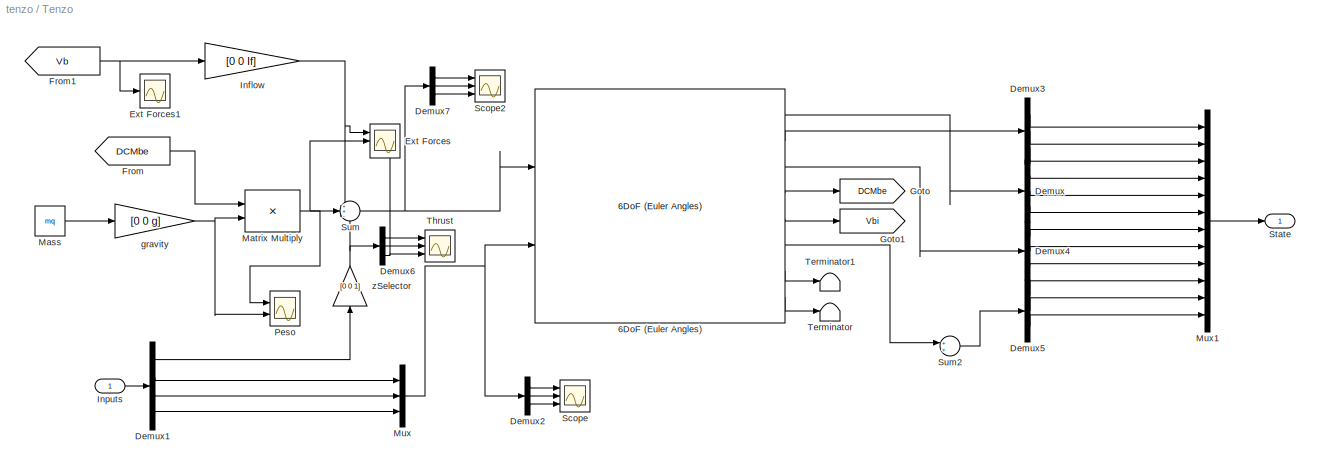
BLOCK [SubSystem] Tenzo
  FunctionWithSeparateData = off
  MaskHideContents = off
  MinAlgLoopOccurrences = off
  Opaque = off
  Ports = [1, 1]
  PropExecContextOutsideSubsystem = off
  RTWSystemCode = Auto
  RequestExecContextInheritance = off
  SID = 33
BLOCK [Reference] Tenzo/6DoF (Euler Angles)  REF=aerolib6dof2/6DoF (Euler Angles)
  Ports = [2, 8]
  SID = 3
  SourceBlock = aerolib6dof2/6DoF (Euler Angles)
  SourceType = 6DoF EoM (Body Axis)
  Vm_0 = [0 0 0]
  eul_0 = [0 0 0]
  inertia = II
  inertia_e = eye(3)
  inertia_f = 2*eye(3)
  k_quat = 1.0
  mass_0 = mq
  mass_e = 0.5
  mass_f = 2.0
  mtype = Fixed
  pm_0 = [0 0 0]
  rep = Euler Angles
  units = Metric (MKS)
  xme_0 = [0 0 0]
BLOCK [Demux] Tenzo/Demux
  DisplayOption = bar
  Outputs = 3
  Ports = [1, 3]
  SID = 8
BLOCK [Demux] Tenzo/Demux1
  DisplayOption = bar
  Ports = [1, 4]
  SID = 26
BLOCK [Demux] Tenzo/Demux2
  DisplayOption = bar
  Outputs = 3
  Ports = [1, 3]
  SID = 148
BLOCK [Demux] Tenzo/Demux3
  DisplayOption = bar
  Outputs = 3
  Ports = [1, 3]
  SID = 28
BLOCK [Demux] Tenzo/Demux4
  DisplayOption = bar
  Outputs = 3
  Ports = [1, 3]
  SID = 30
BLOCK [Demux] Tenzo/Demux5
  DisplayOption = bar
  Outputs = 3
  Ports = [1, 3]
  SID = 31
BLOCK [Demux] Tenzo/Demux6
  DisplayOption = bar
  Outputs = 3
  Ports = [1, 3]
  SID = 242
BLOCK [Demux] Tenzo/Demux7
  DisplayOption = bar
  Outputs = 3
  Ports = [1, 3]
  SID = 238
BLOCK [Scope] Tenzo/Ext Forces
  DataFormat = StructureWithTime
  Floating = off
  NumInputPorts = 3
  Ports = [3]
  SID = 149
  SampleInput = on
  SampleTime = 0.01
  SaveName = ScopeData5
  ShowLegends = off
  TimeRange = 30
  YMax = 0~2~5
  YMin = -950000~-8~-5
  ZoomMode = yonly
BLOCK [Scope] Tenzo/Ext Forces1
  DataFormat = StructureWithTime
  Floating = off
  NumInputPorts = 1
  Ports = [1]
  SID = 345
  SampleInput = on
  SampleTime = 0.01
  SaveName = ScopeData27
  ShowLegends = off
  TimeRange = 30
  YMax = 0
  YMin = -950000
  ZoomMode = yonly
BLOCK [From] Tenzo/From
  GotoTag = DCMbe
  SID = 19
BLOCK [From] Tenzo/From1
  GotoTag = Vb
  SID = 24
BLOCK [Goto] Tenzo/Goto
  GotoTag = DCMbe
  SID = 18
BLOCK [Goto] Tenzo/Goto1
  GotoTag = Vbi
  SID = 23
BLOCK [Gain] Tenzo/Inflow
  Gain = [0 0 If]
  OutDataTypeStr = Inherit: Inherit via internal rule
  ParamDataTypeStr = Inherit: Inherit via internal rule
  SID = 25
  SaturateOnIntegerOverflow = off
BLOCK [Inport] Tenzo/Inputs
  IconDisplay = Port number
  SID = 35
BLOCK [Constant] Tenzo/Mass
  SID = 6
  Value = mq
BLOCK [Product] Tenzo/Matrix Multiply
  InputSameDT = off
  Multiplication = Matrix(*)
  OutDataTypeStr = Inherit: Inherit via internal rule
  Ports = [2, 1]
  RndMeth = Floor
  SID = 21
  SaturateOnIntegerOverflow = off
BLOCK [Mux] Tenzo/Mux
  DisplayOption = bar
  Inputs = 3
  Ports = [3, 1]
  SID = 7
BLOCK [Mux] Tenzo/Mux1
  DisplayOption = bar
  Inputs = 12
  Ports = [12, 1]
  SID = 29
BLOCK [Scope] Tenzo/Peso
  DataFormat = StructureWithTime
  Floating = off
  NumInputPorts = 2
  Ports = [2]
  SID = 151
  SampleInput = on
  SampleTime = 0.01
  SaveName = ScopeData8
  ShowLegends = off
  TimeRange = 30
  YMax = 2~8.5
  YMin = -8~0
BLOCK [Scope] Tenzo/Scope
  DataFormat = StructureWithTime
  Floating = off
  NumInputPorts = 3
  Ports = [3]
  SID = 147
  SampleTime = 0
  SaveName = ScopeData4
  ShowLegends = off
  YMax = 28792.6~1~-607.435
  YMin = 26050.4~-1~-671.375
  ZoomMode = yonly
BLOCK [Scope] Tenzo/Scope2
  DataFormat = StructureWithTime
  Floating = off
  NumInputPorts = 3
  Ports = [3]
  SID = 240
  SampleTime = 0
  SaveName = ScopeData23
  ShowLegends = off
  YMax = 1~1~-0.4
  YMin = -1~-1~-2.3
  ZoomMode = yonly
BLOCK [Outport] Tenzo/State
  IconDisplay = Port number
  SID = 40
BLOCK [Sum] Tenzo/Sum
  IconShape = round
  InputSameDT = off
  Inputs = ++-
  OutDataTypeStr = Inherit: Inherit via internal rule
  Ports = [3, 1]
  SID = 5
  SaturateOnIntegerOverflow = off
BLOCK [Sum] Tenzo/Sum2
  IconShape = round
  InputSameDT = off
  OutDataTypeStr = Inherit: Inherit via internal rule
  Ports = [2, 1]
  SID = 652
  SaturateOnIntegerOverflow = off
BLOCK [Terminator] Tenzo/Terminator
  SID = 9
BLOCK [Terminator] Tenzo/Terminator1
  SID = 32
BLOCK [Scope] Tenzo/Thrust
  DataFormat = StructureWithTime
  Floating = off
  NumInputPorts = 3
  Ports = [3]
  SID = 243
  SampleTime = 0
  SaveName = ScopeData7
  ShowLegends = off
  YMax = 1~1~-0.4
  YMin = -1~-1~-2.3
  ZoomMode = yonly
BLOCK [Gain] Tenzo/gravity
  Gain = [0 0 g]
  OutDataTypeStr = Inherit: Inherit via internal rule
  ParamDataTypeStr = Inherit: Inherit via internal rule
  SID = 10
  SaturateOnIntegerOverflow = off
BLOCK [Gain] Tenzo/zSelector
  Gain = [0 0 1]
  OutDataTypeStr = Inherit: Inherit via internal rule
  ParamDataTypeStr = Inherit: Inherit via internal rule
  SID = 241
  SaturateOnIntegerOverflow = off
BLOCK [ToWorkspace] To Workspace
  MaxDataPoints = inf
  Ports = [1]
  SID = 231
  SampleTime = -1
  SaveFormat = Timeseries
  VariableName = X
BLOCK [Concatenate] Vector\nConcatenate1
  NumInputs = 4
  Ports = [4, 1]
  SID = 165
BLOCK [Concatenate] Vector\nConcatenate2
  NumInputs = 4
  Ports = [4, 1]
  SID = 181
BLOCK [Concatenate] Vector\nConcatenate3
  NumInputs = 4
  Ports = [4, 1]
  SID = 212
BLOCK [Concatenate] Vector\nConcatenate4
  NumInputs = 4
  Ports = [4, 1]
  SID = 616
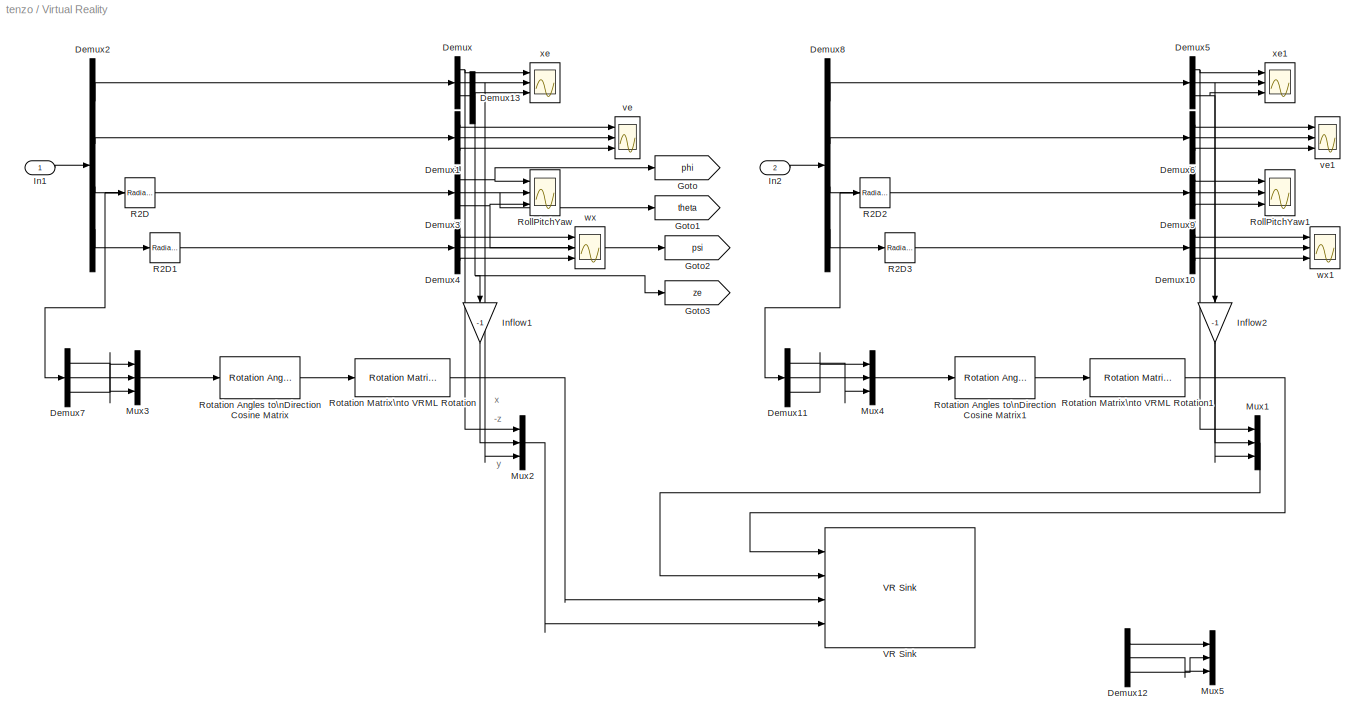
BLOCK [SubSystem] Virtual Reality
  FunctionWithSeparateData = off
  MaskHideContents = off
  MinAlgLoopOccurrences = off
  Opaque = off
  Ports = [2]
  PropExecContextOutsideSubsystem = off
  RTWSystemCode = Auto
  RequestExecContextInheritance = off
  SID = 252
BLOCK [Demux] Virtual Reality/Demux
  DisplayOption = bar
  Outputs = 3
  Ports = [1, 3]
  SID = 74
BLOCK [Demux] Virtual Reality/Demux1
  DisplayOption = bar
  Outputs = 3
  Ports = [1, 3]
  SID = 76
BLOCK [Demux] Virtual Reality/Demux10
  DisplayOption = bar
  Outputs = 3
  Ports = [1, 3]
  SID = 321
BLOCK [Demux] Virtual Reality/Demux11
  DisplayOption = bar
  Outputs = 3
  Ports = [1, 3]
  SID = 322
BLOCK [Demux] Virtual Reality/Demux12
  DisplayOption = bar
  Outputs = 3
  Ports = [1, 3]
  SID = 527
BLOCK [Demux] Virtual Reality/Demux13
  DisplayOption = bar
  Outputs = 3
  Ports = [1, 3]
  SID = 639
BLOCK [Demux] Virtual Reality/Demux2
  DisplayOption = bar
  Ports = [1, 4]
  SID = 27
BLOCK [Demux] Virtual Reality/Demux3
  DisplayOption = bar
  Outputs = 3
  Ports = [1, 3]
  SID = 77
BLOCK [Demux] Virtual Reality/Demux4
  DisplayOption = bar
  Outputs = 3
  Ports = [1, 3]
  SID = 78
BLOCK [Demux] Virtual Reality/Demux5
  DisplayOption = bar
  Outputs = 3
  Ports = [1, 3]
  SID = 317
BLOCK [Demux] Virtual Reality/Demux6
  DisplayOption = bar
  Outputs = 3
  Ports = [1, 3]
  SID = 318
BLOCK [Demux] Virtual Reality/Demux7
  DisplayOption = bar
  Outputs = 3
  Ports = [1, 3]
  SID = 177
BLOCK [Demux] Virtual Reality/Demux8
  DisplayOption = bar
  Ports = [1, 4]
  SID = 319
BLOCK [Demux] Virtual Reality/Demux9
  DisplayOption = bar
  Outputs = 3
  Ports = [1, 3]
  SID = 320
BLOCK [Goto] Virtual Reality/Goto
  GotoTag = phi
  SID = 471
  TagVisibility = global
BLOCK [Goto] Virtual Reality/Goto1
  GotoTag = theta
  SID = 472
  TagVisibility = global
BLOCK [Goto] Virtual Reality/Goto2
  GotoTag = psi
  SID = 473
  TagVisibility = global
BLOCK [Goto] Virtual Reality/Goto3
  GotoTag = ze
  SID = 501
  TagVisibility = global
BLOCK [Inport] Virtual Reality/In1
  IconDisplay = Port number
  SID = 253
BLOCK [Inport] Virtual Reality/In2
  IconDisplay = Port number
  Port = 2
  SID = 316
BLOCK [Gain] Virtual Reality/Inflow1
  Gain = -1
  OutDataTypeStr = Inherit: Inherit via internal rule
  ParamDataTypeStr = Inherit: Inherit via internal rule
  SID = 341
  SaturateOnIntegerOverflow = off
BLOCK [Gain] Virtual Reality/Inflow2
  Gain = -1
  OutDataTypeStr = Inherit: Inherit via internal rule
  ParamDataTypeStr = Inherit: Inherit via internal rule
  SID = 342
  SaturateOnIntegerOverflow = off
BLOCK [Mux] Virtual Reality/Mux1
  DisplayOption = bar
  Inputs = 3
  Ports = [3, 1]
  SID = 323
BLOCK [Mux] Virtual Reality/Mux2
  DisplayOption = bar
  Inputs = 3
  Ports = [3, 1]
  SID = 161
BLOCK [Mux] Virtual Reality/Mux3
  DisplayOption = bar
  Inputs = 3
  Ports = [3, 1]
  SID = 178
BLOCK [Mux] Virtual Reality/Mux4
  DisplayOption = bar
  Inputs = 3
  Ports = [3, 1]
  SID = 324
BLOCK [Mux] Virtual Reality/Mux5
  DisplayOption = bar
  Inputs = 3
  Ports = [3, 1]
  SID = 528
BLOCK [Reference] Virtual Reality/R2D  REF=simulink_extras/Transformations/Radians\nto Degrees
  Ports = [1, 1]
  SID = 115
  SourceBlock = simulink_extras/Transformations/Radians\nto Degrees
  SourceType = RadiansToDegrees
BLOCK [Reference] Virtual Reality/R2D1  REF=simulink_extras/Transformations/Radians\nto Degrees
  Ports = [1, 1]
  SID = 116
  SourceBlock = simulink_extras/Transformations/Radians\nto Degrees
  SourceType = RadiansToDegrees
BLOCK [Reference] Virtual Reality/R2D2  REF=simulink_extras/Transformations/Radians\nto Degrees
  Ports = [1, 1]
  SID = 325
  SourceBlock = simulink_extras/Transformations/Radians\nto Degrees
  SourceType = RadiansToDegrees
BLOCK [Reference] Virtual Reality/R2D3  REF=simulink_extras/Transformations/Radians\nto Degrees
  Ports = [1, 1]
  SID = 326
  SourceBlock = simulink_extras/Transformations/Radians\nto Degrees
  SourceType = RadiansToDegrees
BLOCK [Scope] Virtual Reality/RollPitchYaw
  DataFormat = StructureWithTime
  Floating = off
  LimitDataPoints = off
  NumInputPorts = 3
  Ports = [3]
  SID = 84
  SampleTime = 0
  SaveName = ScopeData6
  ShowLegends = off
  YMax = 1~1~181.9
  YMin = -1~-1~181.1
BLOCK [Scope] Virtual Reality/RollPitchYaw1
  DataFormat = StructureWithTime
  Floating = off
  LimitDataPoints = off
  NumInputPorts = 3
  Ports = [3]
  SID = 327
  SampleTime = 0
  SaveName = ScopeData26
  ShowLegends = off
  YMax = 2300~2300~2300
  YMin = 1000~1000~1000
BLOCK [Reference] Virtual Reality/Rotation Angles to\nDirection Cosine Matrix  REF=aerolibtransform2/Rotation Angles to\nDirection Cosine Matrix
  AttributesFormatString = Rotation Order: %<rotationOrder>
  Ports = [1, 1]
  SID = 174
  SourceBlock = aerolibtransform2/Rotation Angles to\nDirection Cosine Matrix
  SourceType = Ang2DCM
  rotationOrder = ZYX
BLOCK [Reference] Virtual Reality/Rotation Angles to\nDirection Cosine Matrix1  REF=aerolibtransform2/Rotation Angles to\nDirection Cosine Matrix
  AttributesFormatString = Rotation Order: %<rotationOrder>
  Ports = [1, 1]
  SID = 328
  SourceBlock = aerolibtransform2/Rotation Angles to\nDirection Cosine Matrix
  SourceType = Ang2DCM
  rotationOrder = ZYX
BLOCK [Reference] Virtual Reality/Rotation Matrix\nto VRML Rotation  REF=vrlib/Utilities/Rotation Matrix\nto VRML Rotation
  Ports = [1, 1]
  SID = 175
  SourceBlock = vrlib/Utilities/Rotation Matrix\nto VRML Rotation
  SourceType = Rotation Matrix to VRML Rotation
  maxzero = 1e-12
BLOCK [Reference] Virtual Reality/Rotation Matrix\nto VRML Rotation1  REF=vrlib/Utilities/Rotation Matrix\nto VRML Rotation
  Ports = [1, 1]
  SID = 329
  SourceBlock = vrlib/Utilities/Rotation Matrix\nto VRML Rotation
  SourceType = Rotation Matrix to VRML Rotation
  maxzero = 1e-12
BLOCK [Reference] Virtual Reality/VR Sink  REF=vrlib/VR Sink
  AllowVariableSize = off
  AutoView = off
  FieldsWritten = Lin.rotation.4.1.1.double#Lin.translation.3.1.1.double#NonLin.rotation.4.1.1.double#NonLin.translation.3.1.1.double
  Ports = [4]
  RemoteChange = off
  RemoteView = off
  SID = 134
  SampleTime = 0.05
  SourceBlock = vrlib/VR Sink
  SourceType = Virtual Reality Sink
  VideoDimensions = []
  ViewEnable = on
  WorldFileName = aero.wrl
BLOCK [Scope] Virtual Reality/ve
  DataFormat = StructureWithTime
  Floating = off
  NumInputPorts = 3
  Ports = [3]
  SID = 80
  SampleTime = 0
  SaveName = ScopeData2
  ShowLegends = off
  YMax = 5~5~5
  YMin = -5~-5~-5
BLOCK [Scope] Virtual Reality/ve1
  DataFormat = StructureWithTime
  Floating = off
  NumInputPorts = 3
  Ports = [3]
  SID = 331
  SampleTime = 0
  SaveName = ScopeData29
  ShowLegends = off
  YMax = 5~5~5
  YMin = -5~-5~-5
BLOCK [Scope] Virtual Reality/wx
  DataFormat = StructureWithTime
  Floating = off
  LimitDataPoints = off
  NumInputPorts = 3
  Ports = [3]
  SID = 88
  SampleTime = 0
  SaveName = ScopeData9
  ShowLegends = off
  TimeRange = 15
  YMax = 2.5~3~0.02
  YMin = -2~-1.25~-0.07
BLOCK [Scope] Virtual Reality/wx1
  DataFormat = StructureWithTime
  Floating = off
  NumInputPorts = 3
  Ports = [3]
  SID = 332
  SampleTime = 0
  SaveName = ScopeData30
  ShowLegends = off
  TimeRange = 15
  YMax = 5~5~5
  YMin = -5~-5~-5
BLOCK [Scope] Virtual Reality/xe
  DataFormat = StructureWithTime
  Floating = off
  LimitDataPoints = off
  NumInputPorts = 3
  Ports = [3]
  SID = 73
  SampleTime = 0
  ShowLegends = off
  TimeRange = 3
  YMax = 1~1~-12.5
  YMin = -1~-1~-20
BLOCK [Scope] Virtual Reality/xe1
  DataFormat = StructureWithTime
  Floating = off
  LimitDataPoints = off
  NumInputPorts = 3
  Ports = [3]
  SID = 333
  SampleTime = 0
  SaveName = ScopeData31
  ShowLegends = off
  TimeRange = 15
  YMax = 7e-06~7e-06~-2.3e-14
  YMin = 4.25e-06~4.25e-06~-3.6e-14
BLOCK [Scope] rad//s
  DataFormat = StructureWithTime
  Floating = off
  NumInputPorts = 1
  Ports = [1]
  SID = 92
  SampleTime = 0
  SaveName = ScopeData12
  ShowLegends = off
  YMax = 8.5
  YMin = 0
  ZoomMode = yonly
BLOCK [Scope] rad//s2
  DataFormat = StructureWithTime
  Floating = off
  NumInputPorts = 1
  Ports = [1]
  SID = 146
  SampleTime = 0
  SaveName = ScopeData3
  ShowLegends = off
  YMax = 6000
  YMin = 3000
BLOCK [Scope] ve1
  DataFormat = StructureWithTime
  Floating = off
  NumInputPorts = 3
  Ports = [3]
  SID = 406
  SampleTime = 0
  SaveName = ScopeData22
  ShowLegends = off
  YMax = 5~5~5
  YMin = -5~-5~-5
BLOCK [Scope] w0  
  DataFormat = StructureWithTime
  Floating = off
  LimitDataPoints = off
  NumInputPorts = 1
  Ports = [1]
  SID = 213
  SampleTime = 0
  SaveName = ScopeData16
  ShowLegends = off
  YMax = 7000
  YMin = 2500
BLOCK [Scope] w0  1
  DataFormat = StructureWithTime
  Floating = off
  NumInputPorts = 1
  Ports = [1]
  SID = 372
  SampleTime = 0
  SaveName = ScopeData20
  ShowLegends = off
  YMax = 2.75e+08
  YMin = -2.75e+08
BLOCK [Scope] w0  2
  DataFormat = StructureWithTime
  Floating = off
  NumInputPorts = 1
  Ports = [1]
  SID = 590
  SampleTime = 0
  SaveName = ScopeData35
  ShowLegends = off
  YMax = 2.75e+08
  YMin = -2.75e+08
BLOCK [Scope] w0  3
  DataFormat = StructureWithTime
  Floating = off
  LimitDataPoints = off
  NumInputPorts = 1
  Ports = [1]
  SID = 617
  SampleTime = 0
  SaveName = ScopeData36
  ShowLegends = off
  YMax = 7000
  YMin = 2500
BLOCK [Scope] ws
  DataFormat = StructureWithTime
  Floating = off
  NumInputPorts = 1
  Ports = [1]
  SID = 166
  SampleTime = 0
  SaveName = ScopeData10
  ShowLegends = off
  YMax = 1950
  YMin = 950
BLOCK [Scope] wx1
  DataFormat = StructureWithTime
  Floating = off
  NumInputPorts = 3
  Ports = [3]
  SID = 407
  SampleTime = 0
  SaveName = ScopeData24
  ShowLegends = off
  TimeRange = 15
  YMax = 5~5~5
  YMin = -5~-5~-5
BLOCK [Scope] xe1
  DataFormat = StructureWithTime
  Floating = off
  LimitDataPoints = off
  NumInputPorts = 3
  Ports = [3]
  SID = 408
  SampleTime = 0
  SaveName = ScopeData25
  ShowLegends = off
  TimeRange = 3
  YMax = 3e-05~3e-05~7.75e-17
  YMin = 1.6e-05~1.6e-05~4.25e-17
BLOCK [Gain] zSelector
  Gain = -K
  Multiplication = Matrix(K*u)
  OutDataTypeStr = Inherit: Inherit via internal rule
  ParamDataTypeStr = Inherit: Inherit via internal rule
  SID = 366
  SaturateOnIntegerOverflow = off
ANNOTATION (root): u(t)
ANNOTATION Kalman: 
ANNOTATION Pids: E_ze
ANNOTATION Pids: e_phi
ANNOTATION Pids: e_psi
ANNOTATION Pids: e_theta
ANNOTATION Virtual Reality: -z
ANNOTATION Virtual Reality: x
ANNOTATION Virtual Reality: y
LINE  :1 -> Pwm:1
LINE .:1 -> w0  1:1
NET Add1:1 -> Demux5:1, Motori1:1
LINE Constant3:1 -> Sum:2
LINE Constant:1 -> Add1:1
LINE Coppie/Add1:1 -> Coppie/Gain:1
LINE Coppie/Add2:1 -> Coppie/Gain5:1
LINE Coppie/Add3:1 -> Coppie/Gain6:1
NET Coppie/Add:1 -> Coppie/F:1, Coppie/Mux:1
NET Coppie/Demux:1 -> Coppie/F1:1, Coppie/Math\nFunction1:1
LINE Coppie/Demux:2 -> Coppie/Math\nFunction2:1
LINE Coppie/Demux:3 -> Coppie/Math\nFunction3:1
LINE Coppie/Demux:4 -> Coppie/Math\nFunction4:1
NET Coppie/Gain1:1 -> Coppie/Add2:1, Coppie/Add3:1, Coppie/Add:1
NET Coppie/Gain2:1 -> Coppie/Add1:1, Coppie/Add3:2, Coppie/Add:2
NET Coppie/Gain3:1 -> Coppie/Add2:2, Coppie/Add3:3, Coppie/Add:3
NET Coppie/Gain4:1 -> Coppie/Add1:2, Coppie/Add3:4, Coppie/Add:4
NET Coppie/Gain5:1 -> Coppie/Mthe:1, Coppie/Mux:3
NET Coppie/Gain6:1 -> Coppie/Mtau:1, Coppie/Mux:4
NET Coppie/Gain:1 -> Coppie/Mpsi:1, Coppie/Mux:2
NET Coppie/Math\nFunction1:1 -> Coppie/F1:2, Coppie/Gain1:1
LINE Coppie/Math\nFunction2:1 -> Coppie/Gain2:1
LINE Coppie/Math\nFunction3:1 -> Coppie/Gain3:1
LINE Coppie/Math\nFunction4:1 -> Coppie/Gain4:1
LINE Coppie/Mux:1 -> Coppie/U(t):1
LINE Coppie/w(t):1 -> Coppie/Demux:1
LINE Coppie:1 -> Demux8:1
LINE Demux10:1 -> wx1:1
LINE Demux10:2 -> wx1:2
LINE Demux10:3 -> wx1:3
LINE Demux12:1 -> Vector\nConcatenate4:1
LINE Demux12:2 -> Vector\nConcatenate4:2
LINE Demux12:3 -> Vector\nConcatenate4:3
LINE Demux12:4 -> Vector\nConcatenate4:4
LINE Demux1:1 -> .:1
LINE Demux1:2 -> .:2
LINE Demux1:3 -> .:3
LINE Demux1:4 -> .:4
LINE Demux2:1 -> xe1:1
LINE Demux2:2 -> xe1:2
LINE Demux2:3 -> xe1:3
LINE Demux3:1 -> ve1:1
LINE Demux3:2 -> ve1:2
LINE Demux3:3 -> ve1:3
LINE Demux4:1 -> Demux2:1
LINE Demux4:2 -> Demux3:1
LINE Demux4:3 -> R2D2:1
LINE Demux4:4 -> R2D3:1
LINE Demux5:1 ->  :1
LINE Demux5:2 ->  :2
LINE Demux5:3 ->  :3
LINE Demux5:4 ->  :4
LINE Demux6:1 -> Vector\nConcatenate1:1
LINE Demux6:2 -> Vector\nConcatenate1:2
LINE Demux6:3 -> Vector\nConcatenate1:3
LINE Demux6:4 -> Vector\nConcatenate1:4
LINE Demux7:1 -> RollPitchYaw1:1
LINE Demux7:2 -> RollPitchYaw1:2
LINE Demux7:3 -> RollPitchYaw1:3
LINE Demux8:1 -> Vector\nConcatenate2:1
LINE Demux8:2 -> Vector\nConcatenate2:2
LINE Demux8:3 -> Vector\nConcatenate2:3
LINE Demux8:4 -> Vector\nConcatenate2:4
LINE Demux9:1 -> Vector\nConcatenate3:1
LINE Demux9:2 -> Vector\nConcatenate3:2
LINE Demux9:3 -> Vector\nConcatenate3:3
LINE Demux9:4 -> Vector\nConcatenate3:4
LINE IN:1 -> Coppie:1
LINE Kalman/Demux1:1 -> Kalman/ve:1
LINE Kalman/Demux1:2 -> Kalman/ve:2
LINE Kalman/Demux1:3 -> Kalman/ve:3
LINE Kalman/Demux2:1 -> Kalman/Demux:1
LINE Kalman/Demux2:2 -> Kalman/Demux1:1
LINE Kalman/Demux2:3 -> Kalman/R2D:1
LINE Kalman/Demux2:4 -> Kalman/R2D1:1
LINE Kalman/Demux3:1 -> Kalman/RollPitchYaw:1
LINE Kalman/Demux3:2 -> Kalman/RollPitchYaw:2
LINE Kalman/Demux3:3 -> Kalman/RollPitchYaw:3
LINE Kalman/Demux4:1 -> Kalman/wx:1
LINE Kalman/Demux4:2 -> Kalman/wx:2
LINE Kalman/Demux4:3 -> Kalman/wx:3
LINE Kalman/Demux:1 -> Kalman/xe:1
LINE Kalman/Demux:2 -> Kalman/xe:2
LINE Kalman/Demux:3 -> Kalman/xe:3
LINE Kalman/Kalman/Mux:1 -> Kalman/Kalman/filtro di kalman:1
LINE Kalman/Kalman/filtro di kalman:1 -> Kalman/Kalman/xi0:1
LINE Kalman/Kalman/u:1 -> Kalman/Kalman/Mux:1
LINE Kalman/Kalman/y:1 -> Kalman/Kalman/Mux:2
NET Kalman/Kalman:1 -> Kalman/Sum:2, Kalman/Xest:1
LINE Kalman/R2D1:1 -> Kalman/Demux4:1
LINE Kalman/R2D:1 -> Kalman/Demux3:1
LINE Kalman/Sum:1 -> Kalman/Demux2:1
LINE Kalman/u:1 -> Kalman/Kalman:1
NET Kalman/y:1 -> Kalman/Kalman:2, Kalman/Sum:1
LINE Kalman:1 -> Sum:1
NET Linearized Model:1 -> Kalman:1, Manual Switch2:2, Virtual Reality:2
LINE Manual Switch2:1 -> To Workspace:1
NET Manual Switch3:1 -> Add1:2, Motori2:1, rad//s2:1
LINE Motori1/DeadZone1:1 -> Motori1/Motore 2:1
NET Motori1/DeadZone2:1 -> Motori1/Motore 3:1, Motori1/ws:1
LINE Motori1/DeadZone3:1 -> Motori1/Motore 4:1
LINE Motori1/DeadZone:1 -> Motori1/Motore 1:1
LINE Motori1/Demux5:1 -> Motori1/Sat:1
LINE Motori1/Demux5:2 -> Motori1/Sat3:1
LINE Motori1/Demux5:3 -> Motori1/Sat1:1
LINE Motori1/Demux5:4 -> Motori1/Sat2:1
LINE Motori1/Motore 1:1 -> Motori1/Mux:1
LINE Motori1/Motore 2:1 -> Motori1/Mux:3
LINE Motori1/Motore 3:1 -> Motori1/Mux:4
LINE Motori1/Motore 4:1 -> Motori1/Mux:2
LINE Motori1/Mux:1 -> Motori1/w:1
LINE Motori1/Pwm:1 -> Motori1/Demux5:1
LINE Motori1/Sat1:1 -> Motori1/DeadZone1:1
LINE Motori1/Sat2:1 -> Motori1/DeadZone2:1
LINE Motori1/Sat3:1 -> Motori1/DeadZone3:1
LINE Motori1/Sat:1 -> Motori1/DeadZone:1
NET Motori1:1 -> Demux6:1, IN:1
LINE Motori2/DeadZone1:1 -> Motori2/Motore 2:1
LINE Motori2/DeadZone2:1 -> Motori2/Motore 3:1
LINE Motori2/DeadZone3:1 -> Motori2/Motore 4:1
LINE Motori2/DeadZone:1 -> Motori2/Motore 1:1
LINE Motori2/Demux5:1 -> Motori2/Sat:1
LINE Motori2/Demux5:2 -> Motori2/Sat3:1
LINE Motori2/Demux5:3 -> Motori2/Sat1:1
LINE Motori2/Demux5:4 -> Motori2/Sat2:1
LINE Motori2/Motore 1:1 -> Motori2/Mux:1
NET Motori2/Motore 2:1 -> Motori2/Mux:3, Motori2/ws:1
LINE Motori2/Motore 3:1 -> Motori2/Mux:4
LINE Motori2/Motore 4:1 -> Motori2/Mux:2
LINE Motori2/Mux:1 -> Motori2/w:1
LINE Motori2/Sat1:1 -> Motori2/DeadZone1:1
LINE Motori2/Sat2:1 -> Motori2/DeadZone2:1
LINE Motori2/Sat3:1 -> Motori2/DeadZone3:1
LINE Motori2/Sat:1 -> Motori2/DeadZone:1
LINE Motori2/wRif:1 -> Motori2/Demux5:1
NET Motori2:1 -> Demux9:1, IN:2
LINE Mux1:1 -> Sum2:1
LINE Pids/Constant1:1 -> Pids/Sum1:1
LINE Pids/Constant2:1 -> Pids/Sum:1
LINE Pids/Constant3:1 -> Pids/Sum2:1
LINE Pids/Constant4:1 -> Pids/Sum3:1
LINE Pids/From1:1 -> Pids/Sum:2
LINE Pids/From2:1 -> Pids/Sum1:2
LINE Pids/From3:1 -> Pids/Sum2:2
LINE Pids/From4:1 -> Pids/Sum3:2
LINE Pids/Mux1:1 -> Pids/u*(t):1
LINE Pids/PID Controller1:1 -> Pids/Mux1:2
LINE Pids/PID Controller2:1 -> Pids/Mux1:3
LINE Pids/PID Controller3:1 -> Pids/Mux1:4
LINE Pids/PID Controller:1 -> Pids/Mux1:1
NET Pids/Sum1:1 -> Pids/PID Controller1:1, Pids/w0  2:1
NET Pids/Sum2:1 -> Pids/PID Controller2:1, Pids/w0  3:1
NET Pids/Sum3:1 -> Pids/PID Controller3:1, Pids/w0  4:1
NET Pids/Sum:1 -> Pids/PID Controller:1, Pids/w0  1:1
LINE Pids:1 -> Sum2:2
LINE PulsInput/Add2:1 -> PulsInput/Vector\nConcatenate4:1
LINE PulsInput/Add3:1 -> PulsInput/Vector\nConcatenate4:3
LINE PulsInput/Add4:1 -> PulsInput/Vector\nConcatenate4:2
LINE PulsInput/Add5:1 -> PulsInput/Vector\nConcatenate4:4
LINE PulsInput/Constant1:1 -> PulsInput/Add2:1
LINE PulsInput/Constant2:1 -> PulsInput/Add3:1
LINE PulsInput/Constant3:1 -> PulsInput/Add4:1
LINE PulsInput/Constant4:1 -> PulsInput/Add5:1
LINE PulsInput/Inflow1:1 -> PulsInput/Add2:2
LINE PulsInput/Inflow2:1 -> PulsInput/Add4:2
LINE PulsInput/Inflow3:1 -> PulsInput/Add3:2
LINE PulsInput/Inflow4:1 -> PulsInput/Add5:2
LINE PulsInput/Pulse\nGenerator1:1 -> PulsInput/Inflow3:1
LINE PulsInput/Pulse\nGenerator2:1 -> PulsInput/Inflow2:1
LINE PulsInput/Pulse\nGenerator3:1 -> PulsInput/Inflow4:1
LINE PulsInput/Pulse\nGenerator:1 -> PulsInput/Inflow1:1
LINE PulsInput/Vector\nConcatenate4:1 -> PulsInput/W:1
LINE PulsInput:1 -> Manual Switch3:1
LINE R2D2:1 -> Demux7:1
LINE R2D3:1 -> Demux10:1
LINE Ref0/Mux:1 -> Ref0/Out1:1
LINE Ref0/W1:1 -> Ref0/Mux:1
LINE Ref0/W2:1 -> Ref0/Mux:2
LINE Ref0/W3:1 -> Ref0/Mux:3
LINE Ref0/W4:1 -> Ref0/Mux:4
LINE Ref0:1 -> Manual Switch3:2
LINE Signal Builder/Demux:1 -> Signal Builder/Thrust:1
LINE Signal Builder/Demux:2 -> Signal Builder/TauPhi:1
LINE Signal Builder/Demux:3 -> Signal Builder/TauTheta:1
LINE Signal Builder/Demux:4 -> Signal Builder/TauPsi:1
LINE Signal Builder/FromWs:1 -> Signal Builder/Demux:1
LINE Signal Builder:1 -> Mux1:1
LINE Signal Builder:2 -> Mux1:2
LINE Signal Builder:3 -> Mux1:3
LINE Signal Builder:4 -> Mux1:4
NET Sum1:1 -> Kalman:2, Linearized Model:1
NET Sum2:1 -> Tenzo:1, w0  2:1
NET Sum:1 -> Demux4:1, zSelector:1
LINE Tenzo/6DoF (Euler Angles):1 -> Tenzo/Demux:1
LINE Tenzo/6DoF (Euler Angles):2 -> Tenzo/Demux3:1
LINE Tenzo/6DoF (Euler Angles):3 -> Tenzo/Demux4:1
LINE Tenzo/6DoF (Euler Angles):4 -> Tenzo/Goto:1
LINE Tenzo/6DoF (Euler Angles):5 -> Tenzo/Goto1:1
LINE Tenzo/6DoF (Euler Angles):6 -> Tenzo/Sum2:1
LINE Tenzo/6DoF (Euler Angles):7 -> Tenzo/Terminator1:1
LINE Tenzo/6DoF (Euler Angles):8 -> Tenzo/Terminator:1
LINE Tenzo/Demux1:1 -> Tenzo/zSelector:1
LINE Tenzo/Demux1:2 -> Tenzo/Mux:1
LINE Tenzo/Demux1:3 -> Tenzo/Mux:2
LINE Tenzo/Demux1:4 -> Tenzo/Mux:3
LINE Tenzo/Demux2:1 -> Tenzo/Scope:1
LINE Tenzo/Demux2:2 -> Tenzo/Scope:2
LINE Tenzo/Demux2:3 -> Tenzo/Scope:3
LINE Tenzo/Demux3:1 -> Tenzo/Mux1:1
LINE Tenzo/Demux3:2 -> Tenzo/Mux1:2
LINE Tenzo/Demux3:3 -> Tenzo/Mux1:3
LINE Tenzo/Demux4:1 -> Tenzo/Mux1:7
LINE Tenzo/Demux4:2 -> Tenzo/Mux1:8
LINE Tenzo/Demux4:3 -> Tenzo/Mux1:9
LINE Tenzo/Demux5:1 -> Tenzo/Mux1:10
LINE Tenzo/Demux5:2 -> Tenzo/Mux1:11
LINE Tenzo/Demux5:3 -> Tenzo/Mux1:12
LINE Tenzo/Demux6:1 -> Tenzo/Thrust:1
LINE Tenzo/Demux6:2 -> Tenzo/Thrust:2
NET Tenzo/Demux6:3 -> Tenzo/Ext Forces:3, Tenzo/Thrust:3
LINE Tenzo/Demux7:1 -> Tenzo/Scope2:1
LINE Tenzo/Demux7:2 -> Tenzo/Scope2:2
LINE Tenzo/Demux7:3 -> Tenzo/Scope2:3
LINE Tenzo/Demux:1 -> Tenzo/Mux1:4
LINE Tenzo/Demux:2 -> Tenzo/Mux1:5
LINE Tenzo/Demux:3 -> Tenzo/Mux1:6
NET Tenzo/From1:1 -> Tenzo/Ext Forces1:1, Tenzo/Inflow:1
LINE Tenzo/From:1 -> Tenzo/Matrix Multiply:1
NET Tenzo/Inflow:1 -> Tenzo/Ext Forces:1, Tenzo/Sum:1
LINE Tenzo/Inputs:1 -> Tenzo/Demux1:1
LINE Tenzo/Mass:1 -> Tenzo/gravity:1
NET Tenzo/Matrix Multiply:1 -> Tenzo/Ext Forces:2, Tenzo/Peso:1, Tenzo/Sum:2
LINE Tenzo/Mux1:1 -> Tenzo/State:1
NET Tenzo/Mux:1 -> Tenzo/6DoF (Euler Angles):2, Tenzo/Demux2:1
LINE Tenzo/Sum2:1 -> Tenzo/Demux5:1
NET Tenzo/Sum:1 -> Tenzo/6DoF (Euler Angles):1, Tenzo/Demux7:1
NET Tenzo/gravity:1 -> Tenzo/Matrix Multiply:2, Tenzo/Peso:2
NET Tenzo/zSelector:1 -> Tenzo/Demux6:1, Tenzo/Sum:3
NET Tenzo:1 -> Manual Switch2:1, Virtual Reality:1
LINE Vector\nConcatenate1:1 -> ws:1
LINE Vector\nConcatenate2:1 -> rad//s:1
LINE Vector\nConcatenate3:1 -> w0  :1
LINE Vector\nConcatenate4:1 -> w0  3:1
LINE Virtual Reality/Demux10:1 -> Virtual Reality/wx1:1
LINE Virtual Reality/Demux10:2 -> Virtual Reality/wx1:2
LINE Virtual Reality/Demux10:3 -> Virtual Reality/wx1:3
LINE Virtual Reality/Demux11:1 -> Virtual Reality/Mux4:3
LINE Virtual Reality/Demux11:2 -> Virtual Reality/Mux4:2
LINE Virtual Reality/Demux11:3 -> Virtual Reality/Mux4:1
LINE Virtual Reality/Demux12:1 -> Virtual Reality/Mux5:1
LINE Virtual Reality/Demux12:2 -> Virtual Reality/Mux5:3
LINE Virtual Reality/Demux12:3 -> Virtual Reality/Mux5:2
LINE Virtual Reality/Demux1:1 -> Virtual Reality/ve:1
LINE Virtual Reality/Demux1:2 -> Virtual Reality/ve:2
LINE Virtual Reality/Demux1:3 -> Virtual Reality/ve:3
LINE Virtual Reality/Demux2:1 -> Virtual Reality/Demux:1
LINE Virtual Reality/Demux2:2 -> Virtual Reality/Demux1:1
LINE Virtual Reality/Demux2:3 -> Virtual Reality/R2D:1
LINE Virtual Reality/Demux2:4 -> Virtual Reality/R2D1:1
NET Virtual Reality/Demux3:1 -> Virtual Reality/Goto:1, Virtual Reality/RollPitchYaw:1
NET Virtual Reality/Demux3:2 -> Virtual Reality/Goto1:1, Virtual Reality/RollPitchYaw:2
NET Virtual Reality/Demux3:3 -> Virtual Reality/Goto2:1, Virtual Reality/RollPitchYaw:3
LINE Virtual Reality/Demux4:1 -> Virtual Reality/wx:1
LINE Virtual Reality/Demux4:2 -> Virtual Reality/wx:2
LINE Virtual Reality/Demux4:3 -> Virtual Reality/wx:3
NET Virtual Reality/Demux5:1 -> Virtual Reality/Mux1:1, Virtual Reality/xe1:1
NET Virtual Reality/Demux5:2 -> Virtual Reality/Mux1:3, Virtual Reality/xe1:2
NET Virtual Reality/Demux5:3 -> Virtual Reality/Inflow2:1, Virtual Reality/xe1:3
LINE Virtual Reality/Demux6:1 -> Virtual Reality/ve1:1
LINE Virtual Reality/Demux6:2 -> Virtual Reality/ve1:2
LINE Virtual Reality/Demux6:3 -> Virtual Reality/ve1:3
LINE Virtual Reality/Demux7:1 -> Virtual Reality/Mux3:3
LINE Virtual Reality/Demux7:2 -> Virtual Reality/Mux3:2
LINE Virtual Reality/Demux7:3 -> Virtual Reality/Mux3:1
LINE Virtual Reality/Demux8:1 -> Virtual Reality/Demux5:1
LINE Virtual Reality/Demux8:2 -> Virtual Reality/Demux6:1
LINE Virtual Reality/Demux8:3 -> Virtual Reality/R2D2:1
LINE Virtual Reality/Demux8:4 -> Virtual Reality/R2D3:1
LINE Virtual Reality/Demux9:1 -> Virtual Reality/RollPitchYaw1:1
LINE Virtual Reality/Demux9:2 -> Virtual Reality/RollPitchYaw1:2
LINE Virtual Reality/Demux9:3 -> Virtual Reality/RollPitchYaw1:3
NET Virtual Reality/Demux:1 -> Virtual Reality/Mux2:1, Virtual Reality/xe:1
NET Virtual Reality/Demux:2 -> Virtual Reality/Mux2:3, Virtual Reality/xe:2
NET Virtual Reality/Demux:3 -> Virtual Reality/Goto3:1, Virtual Reality/Inflow1:1, Virtual Reality/xe:3
LINE Virtual Reality/In1:1 -> Virtual Reality/Demux2:1
LINE Virtual Reality/In2:1 -> Virtual Reality/Demux8:1
LINE Virtual Reality/Inflow1:1 -> Virtual Reality/Mux2:2
LINE Virtual Reality/Inflow2:1 -> Virtual Reality/Mux1:2
LINE Virtual Reality/Mux1:1 -> Virtual Reality/VR Sink:2
LINE Virtual Reality/Mux2:1 -> Virtual Reality/VR Sink:4
LINE Virtual Reality/Mux3:1 -> Virtual Reality/Rotation Angles to\nDirection Cosine Matrix:1
LINE Virtual Reality/Mux4:1 -> Virtual Reality/Rotation Angles to\nDirection Cosine Matrix1:1
LINE Virtual Reality/R2D1:1 -> Virtual Reality/Demux4:1
NET Virtual Reality/R2D2:1 -> Virtual Reality/Demux11:1, Virtual Reality/Demux9:1
LINE Virtual Reality/R2D3:1 -> Virtual Reality/Demux10:1
NET Virtual Reality/R2D:1 -> Virtual Reality/Demux3:1, Virtual Reality/Demux7:1
LINE Virtual Reality/Rotation Angles to\nDirection Cosine Matrix1:1 -> Virtual Reality/Rotation Matrix\nto VRML Rotation1:1
LINE Virtual Reality/Rotation Angles to\nDirection Cosine Matrix:1 -> Virtual Reality/Rotation Matrix\nto VRML Rotation:1
LINE Virtual Reality/Rotation Matrix\nto VRML Rotation1:1 -> Virtual Reality/VR Sink:1
LINE Virtual Reality/Rotation Matrix\nto VRML Rotation:1 -> Virtual Reality/VR Sink:3
NET zSelector:1 -> Demux12:1, Sum1:2
note: NET lines group one-source signal fan-out (src -> all destinations, sorted); 1:1 wires keep LINE
